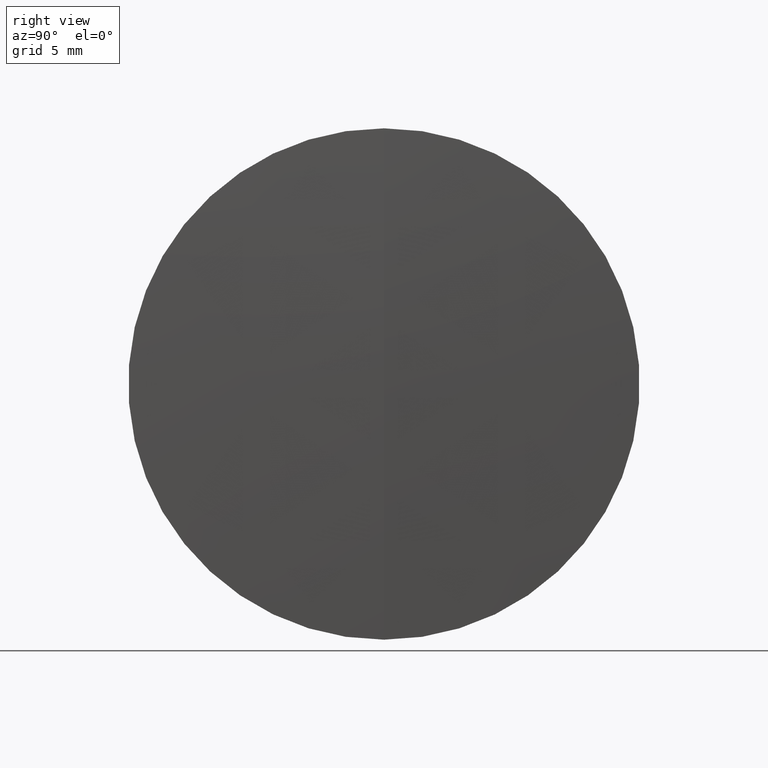
[diagram: clean part render]
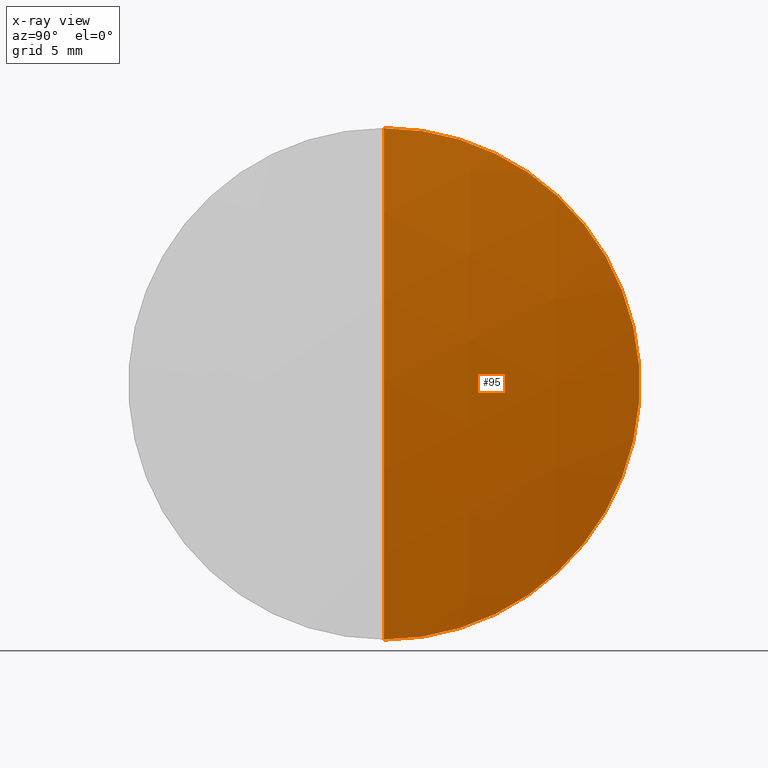
[diagram: x-ray — body ghosted, one internal face saturated and labeled with its STEP entity id]
A machine part, right view, then the same camera in x-ray: the body is ghosted and one INTERNAL B-rep face — a face not visible from any outside direction — is saturated and labeled: STEP entity #95.
In plain terms, the highlighted spherical surface has radius 80.015 mm.
Its self-contained STEP definition (entity closure, byte-faithful):
#5 = DIRECTION ( 'NONE',  ( 0.0000000000000000000, 0.0000000000000000000, 1.000000000000000000 ) ) ;
#12 = DIRECTION ( 'NONE',  ( -0.0000000000000000000, 1.000000000000000000, 1.224646799147353200E-016 ) ) ;
#16 = FACE_OUTER_BOUND ( 'NONE', #81, .T. ) ;
#21 = DIRECTION ( 'NONE',  ( 0.0000000000000000000, 0.0000000000000000000, -1.000000000000000000 ) ) ;
#27 = CARTESIAN_POINT ( 'NONE',  ( 93.91225861228011200, 0.0000000000000000000, 12.50000000000000000 ) ) ;
#33 = CARTESIAN_POINT ( 'NONE',  ( 14.87966897357473400, 0.0000000000000000000, 1.355252715606880500E-017 ) ) ;
#59 = VERTEX_POINT ( 'NONE', #115 ) ;
#70 = ORIENTED_EDGE ( 'NONE', *, *, #341, .F. ) ;
#74 = CIRCLE ( 'NONE', #315, 12.50000000000000000 ) ;
#81 = EDGE_LOOP ( 'NONE', ( #340, #192, #70 ) ) ;
#92 = AXIS2_PLACEMENT_3D ( 'NONE', #147, #265, #130 ) ;
#95 = ADVANCED_FACE ( 'NONE', ( #16 ), #176, .T. ) ;
#115 = CARTESIAN_POINT ( 'NONE',  ( 93.91225861228011200, 1.530808498934191500E-015, -12.50000000000000000 ) ) ;
#116 = CARTESIAN_POINT ( 'NONE',  ( 93.91225861228011200, 0.0000000000000000000, 0.0000000000000000000 ) ) ;
#130 = DIRECTION ( 'NONE',  ( 0.0000000000000000000, 0.0000000000000000000, 1.000000000000000000 ) ) ;
#147 = CARTESIAN_POINT ( 'NONE',  ( 14.87966897357473400, 0.0000000000000000000, 1.355252715606880500E-017 ) ) ;
#176 = SPHERICAL_SURFACE ( 'NONE', #92, 80.01500000000000100 ) ;
#187 = DIRECTION ( 'NONE',  ( 0.0000000000000000000, -1.000000000000000000, 0.0000000000000000000 ) ) ;
#192 = ORIENTED_EDGE ( 'NONE', *, *, #298, .T. ) ;
#217 = AXIS2_PLACEMENT_3D ( 'NONE', #33, #12, #230 ) ;
#230 = DIRECTION ( 'NONE',  ( 0.0000000000000000000, -1.224646799147353200E-016, 1.000000000000000000 ) ) ;
#234 = CARTESIAN_POINT ( 'NONE',  ( 94.89466897357473800, 0.0000000000000000000, 4.913058208844842300E-015 ) ) ;
#236 = CARTESIAN_POINT ( 'NONE',  ( 14.87966897357473400, 0.0000000000000000000, 1.355252715606880500E-017 ) ) ;
#254 = CIRCLE ( 'NONE', #217, 80.01500000000000100 ) ;
#265 = DIRECTION ( 'NONE',  ( 0.0000000000000000000, 1.000000000000000000, 0.0000000000000000000 ) ) ;
#275 = EDGE_CURVE ( 'NONE', #283, #297, #279, .T. ) ;
#279 = CIRCLE ( 'NONE', #328, 80.01500000000000100 ) ;
#283 = VERTEX_POINT ( 'NONE', #234 ) ;
#297 = VERTEX_POINT ( 'NONE', #27 ) ;
#298 = EDGE_CURVE ( 'NONE', #283, #59, #254, .T. ) ;
#305 = DIRECTION ( 'NONE',  ( -1.000000000000000000, -0.0000000000000000000, -0.0000000000000000000 ) ) ;
#315 = AXIS2_PLACEMENT_3D ( 'NONE', #116, #305, #5 ) ;
#328 = AXIS2_PLACEMENT_3D ( 'NONE', #236, #187, #21 ) ;
#340 = ORIENTED_EDGE ( 'NONE', *, *, #275, .F. ) ;
#341 = EDGE_CURVE ( 'NONE', #297, #59, #74, .T. ) ;